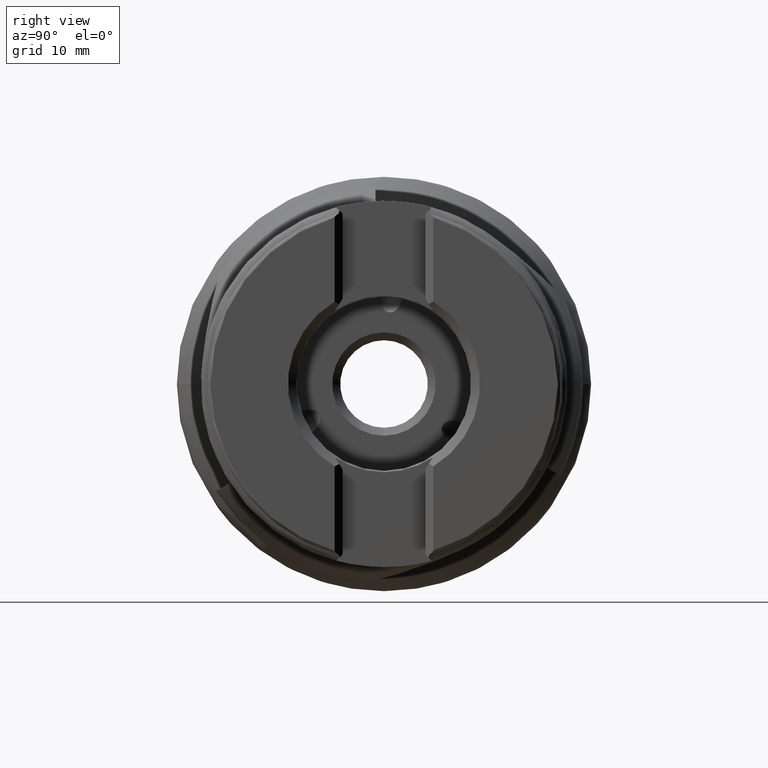
[diagram: clean part render]
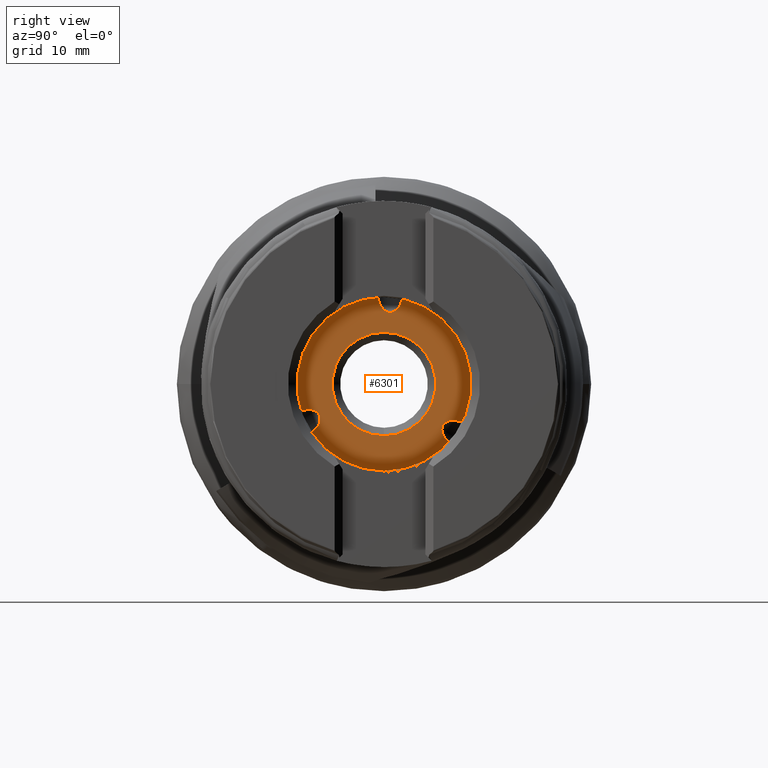
[diagram: same view with one face highlighted and labeled with its STEP entity id]
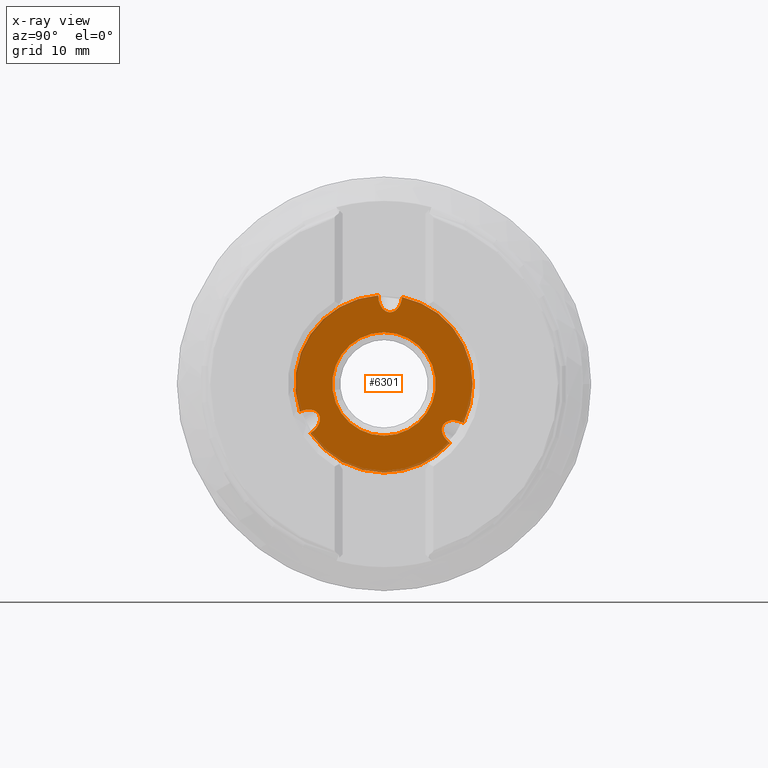
[diagram: x-ray of the same camera — body ghosted, the highlighted face saturated]
A machine part, right view. The second image highlights one B-rep face of the part: STEP entity #6301.
The next image is the same camera in x-ray: the body ghosted, the highlighted face saturated — about 6% of this face is hidden behind the body in this view.
In plain terms, the highlighted planar face has unit normal (1, 0, 0).
Its self-contained STEP definition (entity closure, byte-faithful):
#29 =( BOUNDED_CURVE ( )  B_SPLINE_CURVE ( 3, ( #2840, #2838, #2833, #2832 ),
 .UNSPECIFIED., .F., .F. ) 
 B_SPLINE_CURVE_WITH_KNOTS ( ( 4, 4 ),
 ( 3.529189340244954600, 4.615318389937085500 ),
 .UNSPECIFIED. ) 
 CURVE ( )  GEOMETRIC_REPRESENTATION_ITEM ( )  RATIONAL_B_SPLINE_CURVE ( ( 1.000000000000000000, 0.9040860492048563600, 0.9040860492048563600, 1.000000000000000000 ) ) 
 REPRESENTATION_ITEM ( '' )  );
#30 =( BOUNDED_CURVE ( )  B_SPLINE_CURVE ( 3, ( #2848, #2846, #2837, #2836 ),
 .UNSPECIFIED., .F., .F. ) 
 B_SPLINE_CURVE_WITH_KNOTS ( ( 4, 4 ),
 ( 1.569450112242995400, 2.753995966934620100 ),
 .UNSPECIFIED. ) 
 CURVE ( )  GEOMETRIC_REPRESENTATION_ITEM ( )  RATIONAL_B_SPLINE_CURVE ( ( 1.000000000000000000, 0.8864493104029757000, 0.8864493104029757000, 1.000000000000000000 ) ) 
 REPRESENTATION_ITEM ( '' )  );
#36 =( BOUNDED_CURVE ( )  B_SPLINE_CURVE ( 3, ( #2907, #2905, #2889, #2888 ),
 .UNSPECIFIED., .F., .T. ) 
 B_SPLINE_CURVE_WITH_KNOTS ( ( 4, 4 ),
 ( 1.569450112243106800, 3.141592653589793100 ),
 .UNSPECIFIED. ) 
 CURVE ( )  GEOMETRIC_REPRESENTATION_ITEM ( )  RATIONAL_B_SPLINE_CURVE ( ( 1.000000000000000000, 0.8044204415450695300, 0.8044204415450695300, 1.000000000000000000 ) ) 
 REPRESENTATION_ITEM ( '' )  );
#234 = EDGE_LOOP ( 'NONE', ( #6783, #6784, #6785, #6786, #6787, #6788, #6789, #6790, #6791, #6792 ) ) ;
#357 = EDGE_LOOP ( 'NONE', ( #6793, #6794 ) ) ;
#415 = CARTESIAN_POINT ( 'NONE',  ( 30.72299999999999900, 0.0000000000000000000, -6.500000000000008000 ) ) ;
#427 = CARTESIAN_POINT ( 'NONE',  ( 30.72300000000000600, 2.264117499219976600, 10.91770451833757800 ) ) ;
#433 = CARTESIAN_POINT ( 'NONE',  ( 30.72300000000000600, 9.999942584588264800, -4.931901084261949300 ) ) ;
#1000 = CARTESIAN_POINT ( 'NONE',  ( 30.72300000000000600, -0.7288196643722023600, 11.12615485677002500 ) ) ;
#1005 = CARTESIAN_POINT ( 'NONE',  ( 30.72300000000000600, 1.365481181049298600E-015, -11.14999999999999900 ) ) ;
#1072 = CARTESIAN_POINT ( 'NONE',  ( 30.72300000000000600, -9.271122920217120400, -6.194253772508129300 ) ) ;
#1091 = CARTESIAN_POINT ( 'NONE',  ( 30.72300000000000300, -8.034335604002214000, -4.402798715194763600 ) ) ;
#1111 = CARTESIAN_POINT ( 'NONE',  ( 30.72300000000000600, 8.322950714283388500, -7.419635530645400900 ) ) ;
#1112 = CARTESIAN_POINT ( 'NONE',  ( 30.72299999999999900, 7.960204194457806300E-016, 6.500000000000008000 ) ) ;
#1183 = CARTESIAN_POINT ( 'NONE',  ( 30.72300000000000300, 0.7711789764068322000, 9.001978761757376500 ) ) ;
#1200 = CARTESIAN_POINT ( 'NONE',  ( 30.72300000000000600, -10.58706821350223100, -3.498068987692653000 ) ) ;
#1216 = CARTESIAN_POINT ( 'NONE',  ( 30.72300000000000300, 7.263156627595448900, -5.738519884060230500 ) ) ;
#1258 = CARTESIAN_POINT ( 'NONE',  ( 30.72300000000000600, 0.0000000000000000000, 0.0000000000000000000 ) ) ;
#1259 = DIRECTION ( 'NONE',  ( -1.000000000000000000, -0.0000000000000000000, -0.0000000000000000000 ) ) ;
#1260 = DIRECTION ( 'NONE',  ( 0.0000000000000000000, 0.0000000000000000000, 1.000000000000000000 ) ) ;
#1261 = CARTESIAN_POINT ( 'NONE',  ( 30.72300000000000600, 9.999942584588264800, -4.931901084261949300 ) ) ;
#1262 = CARTESIAN_POINT ( 'NONE',  ( 30.72300000000001300, 8.557597148304831000, -4.097330892221144400 ) ) ;
#1271 = CARTESIAN_POINT ( 'NONE',  ( 30.72300000000001300, 7.263156627595452400, -4.478844125493505000 ) ) ;
#1272 = CARTESIAN_POINT ( 'NONE',  ( 30.72300000000000300, 7.263156627595448900, -5.738519884060230500 ) ) ;
#1273 = CARTESIAN_POINT ( 'NONE',  ( 30.72300000000000300, 0.7711789764068322000, 9.001978761757376500 ) ) ;
#1274 = CARTESIAN_POINT ( 'NONE',  ( 30.72300000000000300, 1.583663203096327400, 9.001978761757376500 ) ) ;
#1279 = CARTESIAN_POINT ( 'NONE',  ( 30.72300000000000300, 2.185372976018279600, 9.774087520663087500 ) ) ;
#1280 = CARTESIAN_POINT ( 'NONE',  ( 30.72300000000000600, 2.264117499219976600, 10.91770451833757800 ) ) ;
#1757 = EDGE_CURVE ( 'NONE', #4010, #3871, #7186, .T. ) ;
#1761 = EDGE_CURVE ( 'NONE', #3762, #3831, #7189, .T. ) ;
#1772 = EDGE_CURVE ( 'NONE', #3959, #3778, #7202, .T. ) ;
#1781 = EDGE_CURVE ( 'NONE', #3778, #3942, #36, .T. ) ;
#1792 = EDGE_CURVE ( 'NONE', #3831, #3850, #30, .T. ) ;
#1793 = EDGE_CURVE ( 'NONE', #3975, #3870, #29, .T. ) ;
#1931 = EDGE_CURVE ( 'NONE', #3850, #3959, #7411, .T. ) ;
#1933 = EDGE_CURVE ( 'NONE', #4024, #4030, #3282, .T. ) ;
#1935 = EDGE_CURVE ( 'NONE', #3871, #4010, #3285, .T. ) ;
#1940 = EDGE_CURVE ( 'NONE', #3870, #3762, #3293, .T. ) ;
#1946 = EDGE_CURVE ( 'NONE', #4030, #3975, #7323, .T. ) ;
#1948 = EDGE_CURVE ( 'NONE', #3942, #4024, #7324, .T. ) ;
#2662 = CARTESIAN_POINT ( 'NONE',  ( 30.72300000000000300, -8.034335604002214000, -4.402798715194763600 ) ) ;
#2663 = CARTESIAN_POINT ( 'NONE',  ( 30.72300000000000600, -8.034335604002215800, -3.230757542030930900 ) ) ;
#2668 = CARTESIAN_POINT ( 'NONE',  ( 30.72300000000000600, -9.197519666236711800, -2.818506295760243100 ) ) ;
#2669 = CARTESIAN_POINT ( 'NONE',  ( 30.72300000000000600, -10.58706821350223100, -3.498068987692653000 ) ) ;
#2674 = CARTESIAN_POINT ( 'NONE',  ( 30.72300000000000600, 0.0000000000000000000, 0.0000000000000000000 ) ) ;
#2675 = DIRECTION ( 'NONE',  ( -1.000000000000000000, -0.0000000000000000000, -0.0000000000000000000 ) ) ;
#2676 = DIRECTION ( 'NONE',  ( 0.0000000000000000000, 0.0000000000000000000, 1.000000000000000000 ) ) ;
#2678 = CARTESIAN_POINT ( 'NONE',  ( 30.72299999999999900, 0.0000000000000000000, 0.0000000000000000000 ) ) ;
#2679 = DIRECTION ( 'NONE',  ( -1.000000000000000000, -0.0000000000000000000, -0.0000000000000000000 ) ) ;
#2680 = DIRECTION ( 'NONE',  ( 0.0000000000000000000, 0.0000000000000000000, 1.000000000000000000 ) ) ;
#2832 = CARTESIAN_POINT ( 'NONE',  ( 30.72300000000000600, 8.322950714283388500, -7.419635530645400900 ) ) ;
#2833 = CARTESIAN_POINT ( 'NONE',  ( 30.72300000000000300, 7.653898964426033100, -6.969391375339872900 ) ) ;
#2836 = CARTESIAN_POINT ( 'NONE',  ( 30.72300000000000300, -8.034335604002214000, -4.402798715194763600 ) ) ;
#2837 = CARTESIAN_POINT ( 'NONE',  ( 30.72300000000000600, -8.034335604002214000, -5.076037982726405500 ) ) ;
#2838 = CARTESIAN_POINT ( 'NONE',  ( 30.72300000000000300, 7.263156627595450700, -6.349569973728342200 ) ) ;
#2840 = CARTESIAN_POINT ( 'NONE',  ( 30.72300000000000300, 7.263156627595448900, -5.738519884060230500 ) ) ;
#2846 = CARTESIAN_POINT ( 'NONE',  ( 30.72300000000000600, -8.499407248708591200, -5.749682463875902100 ) ) ;
#2848 = CARTESIAN_POINT ( 'NONE',  ( 30.72300000000000600, -9.271122920217120400, -6.194253772508129300 ) ) ;
#2888 = CARTESIAN_POINT ( 'NONE',  ( 30.72300000000000300, 0.7711789764068322000, 9.001978761757376500 ) ) ;
#2889 = CARTESIAN_POINT ( 'NONE',  ( 30.72300000000000300, -0.1084388740858277800, 9.001978761757376500 ) ) ;
#2905 = CARTESIAN_POINT ( 'NONE',  ( 30.72300000000000300, -0.7300038183658427200, 9.882188490114806700 ) ) ;
#2907 = CARTESIAN_POINT ( 'NONE',  ( 30.72300000000000600, -0.7288196643722023600, 11.12615485677002500 ) ) ;
#2962 = DIRECTION ( 'NONE',  ( 0.0000000000000000000, 0.0000000000000000000, 1.000000000000000000 ) ) ;
#2963 = DIRECTION ( 'NONE',  ( -1.000000000000000000, -0.0000000000000000000, -0.0000000000000000000 ) ) ;
#2964 = CARTESIAN_POINT ( 'NONE',  ( 30.72300000000000600, 0.0000000000000000000, 0.0000000000000000000 ) ) ;
#3001 = DIRECTION ( 'NONE',  ( 0.0000000000000000000, 0.0000000000000000000, 1.000000000000000000 ) ) ;
#3002 = DIRECTION ( 'NONE',  ( -1.000000000000000000, -0.0000000000000000000, -0.0000000000000000000 ) ) ;
#3003 = CARTESIAN_POINT ( 'NONE',  ( 30.72300000000000600, 0.0000000000000000000, 0.0000000000000000000 ) ) ;
#3025 = DIRECTION ( 'NONE',  ( 0.0000000000000000000, 0.0000000000000000000, 1.000000000000000000 ) ) ;
#3026 = DIRECTION ( 'NONE',  ( -1.000000000000000000, -0.0000000000000000000, -0.0000000000000000000 ) ) ;
#3027 = CARTESIAN_POINT ( 'NONE',  ( 30.72299999999999900, 0.0000000000000000000, 0.0000000000000000000 ) ) ;
#3282 = CIRCLE ( 'NONE', #6418, 11.14999999999999900 ) ;
#3285 = CIRCLE ( 'NONE', #6419, 6.500000000000008000 ) ;
#3293 = CIRCLE ( 'NONE', #6421, 11.14999999999999900 ) ;
#3714 = FACE_OUTER_BOUND ( 'NONE', #234, .T. ) ;
#3715 = FACE_BOUND ( 'NONE', #357, .T. ) ;
#3762 = VERTEX_POINT ( 'NONE', #1005 ) ;
#3778 = VERTEX_POINT ( 'NONE', #1000 ) ;
#3831 = VERTEX_POINT ( 'NONE', #1072 ) ;
#3850 = VERTEX_POINT ( 'NONE', #1091 ) ;
#3870 = VERTEX_POINT ( 'NONE', #1111 ) ;
#3871 = VERTEX_POINT ( 'NONE', #1112 ) ;
#3942 = VERTEX_POINT ( 'NONE', #1183 ) ;
#3959 = VERTEX_POINT ( 'NONE', #1200 ) ;
#3975 = VERTEX_POINT ( 'NONE', #1216 ) ;
#4010 = VERTEX_POINT ( 'NONE', #415 ) ;
#4024 = VERTEX_POINT ( 'NONE', #427 ) ;
#4030 = VERTEX_POINT ( 'NONE', #433 ) ;
#4733 = DIRECTION ( 'NONE',  ( 1.000000000000000000, 0.0000000000000000000, 0.0000000000000000000 ) ) ;
#4734 = CARTESIAN_POINT ( 'NONE',  ( 30.72300000000000300, 11.14999999999999900, 0.0000000000000000000 ) ) ;
#4736 = PLANE ( 'NONE',  #6618 ) ;
#4738 = DIRECTION ( 'NONE',  ( 0.0000000000000000000, 0.0000000000000000000, -1.000000000000000000 ) ) ;
#6301 = ADVANCED_FACE ( 'NONE', ( #3714, #3715 ), #4736, .T. ) ;
#6357 = AXIS2_PLACEMENT_3D ( 'NONE', #3027, #3026, #3025 ) ;
#6359 = AXIS2_PLACEMENT_3D ( 'NONE', #3003, #3002, #3001 ) ;
#6364 = AXIS2_PLACEMENT_3D ( 'NONE', #2964, #2963, #2962 ) ;
#6418 = AXIS2_PLACEMENT_3D ( 'NONE', #2674, #2675, #2676 ) ;
#6419 = AXIS2_PLACEMENT_3D ( 'NONE', #2678, #2679, #2680 ) ;
#6421 = AXIS2_PLACEMENT_3D ( 'NONE', #1258, #1259, #1260 ) ;
#6618 = AXIS2_PLACEMENT_3D ( 'NONE', #4734, #4733, #4738 ) ;
#6783 = ORIENTED_EDGE ( 'NONE', *, *, #1946, .F. ) ;
#6784 = ORIENTED_EDGE ( 'NONE', *, *, #1933, .F. ) ;
#6785 = ORIENTED_EDGE ( 'NONE', *, *, #1948, .F. ) ;
#6786 = ORIENTED_EDGE ( 'NONE', *, *, #1781, .F. ) ;
#6787 = ORIENTED_EDGE ( 'NONE', *, *, #1772, .F. ) ;
#6788 = ORIENTED_EDGE ( 'NONE', *, *, #1931, .F. ) ;
#6789 = ORIENTED_EDGE ( 'NONE', *, *, #1792, .F. ) ;
#6790 = ORIENTED_EDGE ( 'NONE', *, *, #1761, .F. ) ;
#6791 = ORIENTED_EDGE ( 'NONE', *, *, #1940, .F. ) ;
#6792 = ORIENTED_EDGE ( 'NONE', *, *, #1793, .F. ) ;
#6793 = ORIENTED_EDGE ( 'NONE', *, *, #1757, .T. ) ;
#6794 = ORIENTED_EDGE ( 'NONE', *, *, #1935, .T. ) ;
#7186 = CIRCLE ( 'NONE', #6357, 6.500000000000008000 ) ;
#7189 = CIRCLE ( 'NONE', #6359, 11.14999999999999900 ) ;
#7202 = CIRCLE ( 'NONE', #6364, 11.14999999999999900 ) ;
#7323 =( BOUNDED_CURVE ( )  B_SPLINE_CURVE ( 3, ( #1261, #1262, #1271, #1272 ),
 .UNSPECIFIED., .F., .F. ) 
 B_SPLINE_CURVE_WITH_KNOTS ( ( 4, 4 ),
 ( 1.569450112243005600, 3.529189340244954600 ),
 .UNSPECIFIED. ) 
 CURVE ( )  GEOMETRIC_REPRESENTATION_ITEM ( )  RATIONAL_B_SPLINE_CURVE ( ( 1.000000000000000000, 0.7047538848402777900, 0.7047538848402777900, 1.000000000000000000 ) ) 
 REPRESENTATION_ITEM ( '' )  );
#7324 =( BOUNDED_CURVE ( )  B_SPLINE_CURVE ( 3, ( #1273, #1274, #1279, #1280 ),
 .UNSPECIFIED., .F., .F. ) 
 B_SPLINE_CURVE_WITH_KNOTS ( ( 4, 4 ),
 ( 3.141592653589793100, 4.615318389936983400 ),
 .UNSPECIFIED. ) 
 CURVE ( )  GEOMETRIC_REPRESENTATION_ITEM ( )  RATIONAL_B_SPLINE_CURVE ( ( 1.000000000000000000, 0.8270535009839680200, 0.8270535009839680200, 1.000000000000000000 ) ) 
 REPRESENTATION_ITEM ( '' )  );
#7411 =( BOUNDED_CURVE ( )  B_SPLINE_CURVE ( 3, ( #2662, #2663, #2668, #2669 ),
 .UNSPECIFIED., .F., .F. ) 
 B_SPLINE_CURVE_WITH_KNOTS ( ( 4, 4 ),
 ( 2.753995966934620100, 4.615318389937096200 ),
 .UNSPECIFIED. ) 
 CURVE ( )  GEOMETRIC_REPRESENTATION_ITEM ( )  RATIONAL_B_SPLINE_CURVE ( ( 1.000000000000000000, 0.7315358742097922700, 0.7315358742097922700, 1.000000000000000000 ) ) 
 REPRESENTATION_ITEM ( '' )  );